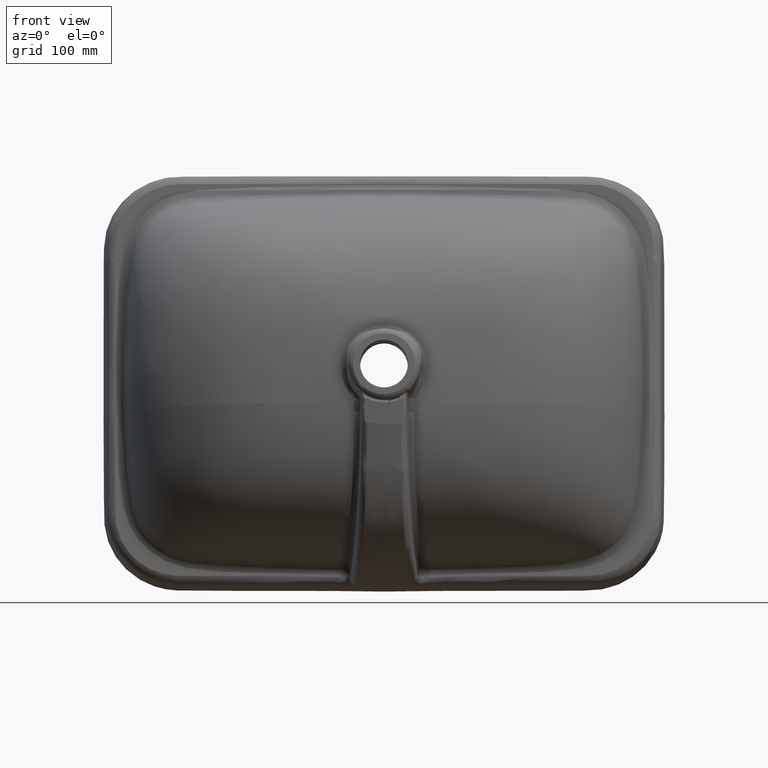
[diagram: clean part render]
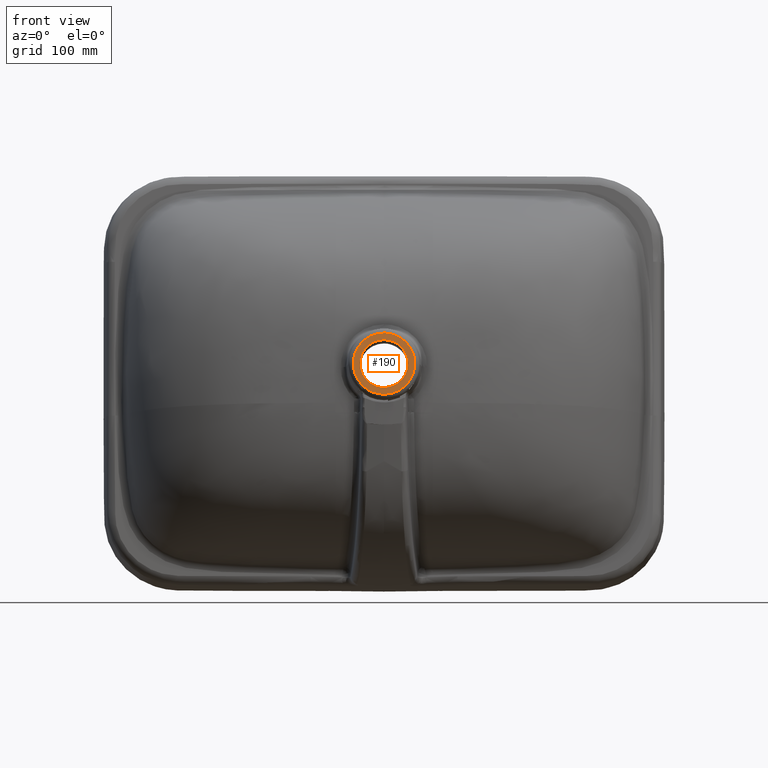
[diagram: same view with one face highlighted and labeled with its STEP entity id]
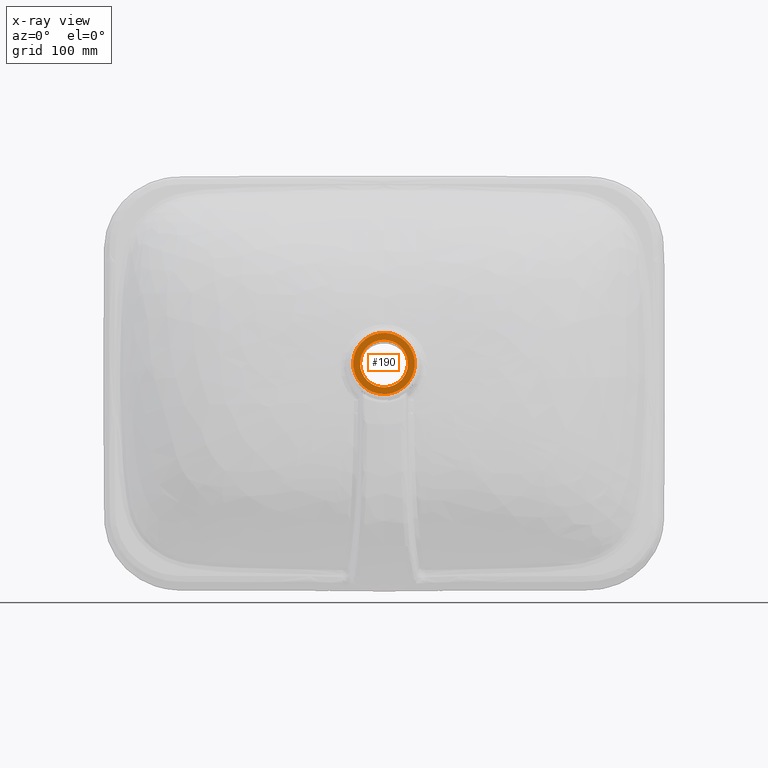
[diagram: x-ray of the same camera — body ghosted, the highlighted face saturated]
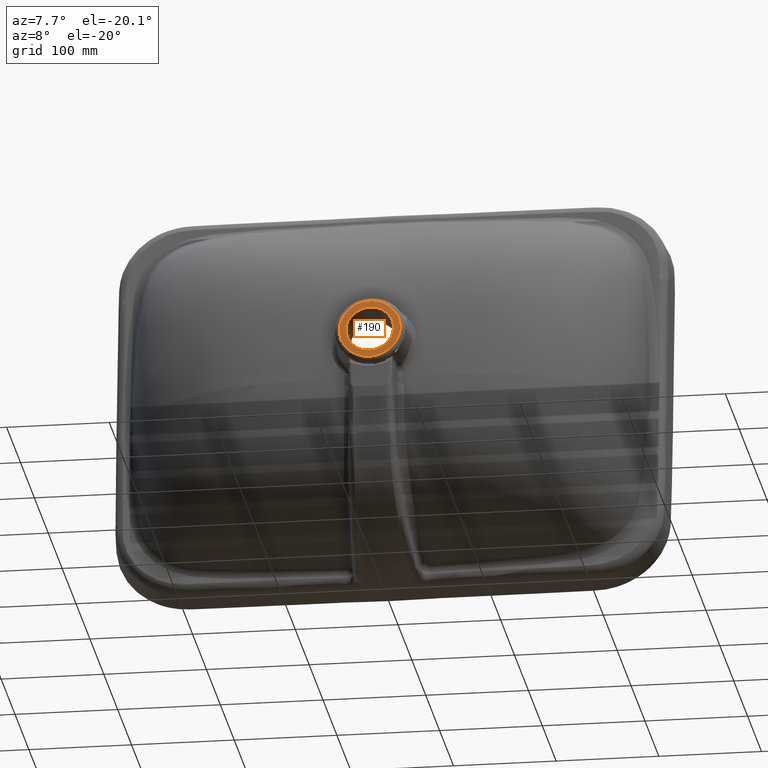
[diagram: same view with one face highlighted and labeled with its STEP entity id]
A machine part, front view. The second image highlights one B-rep face of the part: STEP entity #190.
The next image is the same camera in x-ray: the body ghosted, the highlighted face saturated — about 0% of this face is hidden behind the body in this view.
A second angle (auxiliary view) of the same face is appended — the face is thin or edge-on in the first view.
In plain terms, the highlighted planar face has unit normal (0, 0.9945, -0.1045).
Its self-contained STEP definition (entity closure, byte-faithful):
#161=FACE_BOUND('',#639,.T.);
#162=FACE_BOUND('',#640,.T.);
#178=PLANE('',#2673);
#190=ADVANCED_FACE('',(#161,#162),#178,.F.);
#639=EDGE_LOOP('',(#831));
#640=EDGE_LOOP('',(#832,#833,#834,#835,#836,#837,#838));
#831=ORIENTED_EDGE('',*,*,#1884,.T.);
#832=ORIENTED_EDGE('',*,*,#1885,.F.);
#833=ORIENTED_EDGE('',*,*,#1886,.F.);
#834=ORIENTED_EDGE('',*,*,#1887,.F.);
#835=ORIENTED_EDGE('',*,*,#1888,.F.);
#836=ORIENTED_EDGE('',*,*,#1889,.F.);
#837=ORIENTED_EDGE('',*,*,#1890,.F.);
#838=ORIENTED_EDGE('',*,*,#1891,.F.);
#1639=VERTEX_POINT('',#5483);
#1640=VERTEX_POINT('',#5488);
#1641=VERTEX_POINT('',#5489);
#1642=VERTEX_POINT('',#5494);
#1643=VERTEX_POINT('',#5519);
#1644=VERTEX_POINT('',#5524);
#1645=VERTEX_POINT('',#5529);
#1646=VERTEX_POINT('',#5534);
#1884=EDGE_CURVE('',#1639,#1639,#2291,.T.);
#1885=EDGE_CURVE('',#1640,#1641,#2292,.T.);
#1886=EDGE_CURVE('',#1642,#1640,#2293,.T.);
#1887=EDGE_CURVE('',#1643,#1642,#2294,.T.);
#1888=EDGE_CURVE('',#1644,#1643,#2295,.T.);
#1889=EDGE_CURVE('',#1645,#1644,#2296,.T.);
#1890=EDGE_CURVE('',#1646,#1645,#2297,.T.);
#1891=EDGE_CURVE('',#1641,#1646,#2298,.T.);
#2291=B_SPLINE_CURVE_WITH_KNOTS('',3,(#5465,#5466,#5467,#5468,#5469,#5470,
#5471,#5472,#5473,#5474,#5475,#5476,#5477,#5478,#5479,#5480,#5481,#5482),
 .UNSPECIFIED.,.T.,.F.,(1,3,2,2,2,2,2,2,2,3,1),(-0.125,0.,0.125,0.25,0.375,
0.5,0.625,0.75,0.875,1.,1.125),.UNSPECIFIED.);
#2292=B_SPLINE_CURVE_WITH_KNOTS('',3,(#5484,#5485,#5486,#5487),
 .UNSPECIFIED.,.F.,.F.,(4,4),(0.,1.),.UNSPECIFIED.);
#2293=B_SPLINE_CURVE_WITH_KNOTS('',3,(#5490,#5491,#5492,#5493),
 .UNSPECIFIED.,.F.,.F.,(4,4),(0.,1.),.UNSPECIFIED.);
#2294=B_SPLINE_CURVE_WITH_KNOTS('',3,(#5495,#5496,#5497,#5498,#5499,#5500,
#5501,#5502,#5503,#5504,#5505,#5506,#5507,#5508,#5509,#5510,#5511,#5512,
#5513,#5514,#5515,#5516,#5517,#5518),.UNSPECIFIED.,.F.,.F.,(4,2,2,2,2,2,
2,2,2,2,2,4),(0.,0.125,0.1875,0.250000000000001,0.375,0.5,0.625,0.75,0.8125,
0.875,0.9375,1.),.UNSPECIFIED.);
#2295=B_SPLINE_CURVE_WITH_KNOTS('',3,(#5520,#5521,#5522,#5523),
 .UNSPECIFIED.,.F.,.F.,(4,4),(0.,1.),.UNSPECIFIED.);
#2296=B_SPLINE_CURVE_WITH_KNOTS('',3,(#5525,#5526,#5527,#5528),
 .UNSPECIFIED.,.F.,.F.,(4,4),(0.,1.),.UNSPECIFIED.);
#2297=B_SPLINE_CURVE_WITH_KNOTS('',3,(#5530,#5531,#5532,#5533),
 .UNSPECIFIED.,.F.,.F.,(4,4),(0.,1.),.UNSPECIFIED.);
#2298=B_SPLINE_CURVE_WITH_KNOTS('',3,(#5535,#5536,#5537,#5538,#5539,#5540,
#5541),.UNSPECIFIED.,.F.,.F.,(4,1,1,1,4),(0.,0.234933804000324,0.499668864774638,
0.764403925548953,1.),.UNSPECIFIED.);
#2673=AXIS2_PLACEMENT_3D('',#5542,#2705,#2706);
#2705=DIRECTION('',(0.,0.,1.));
#2706=DIRECTION('',(1.,0.,0.));
#5465=CARTESIAN_POINT('',(23.1525002314284,-118.093147805348,-179.951073065238));
#5466=CARTESIAN_POINT('',(23.1522361668072,-112.057737267962,-179.951073065238));
#5467=CARTESIAN_POINT('',(20.6361224593884,-105.986877132274,-179.951073065238));
#5468=CARTESIAN_POINT('',(12.1064575063114,-97.4568389755793,-179.951073065238));
#5469=CARTESIAN_POINT('',(6.03151610850711,-94.940779752822,-179.951073065238));
#5470=CARTESIAN_POINT('',(-6.03151564565046,-94.9405158578746,-179.951073065238));
#5471=CARTESIAN_POINT('',(-12.1062704410616,-97.4570255766814,-179.951073065238));
#5472=CARTESIAN_POINT('',(-20.6363085989248,-105.986690531172,-179.951073065238));
#5473=CARTESIAN_POINT('',(-23.1523678211797,-112.061631927492,-179.951073065238));
#5474=CARTESIAN_POINT('',(-23.1526317159635,-124.124663683205,-179.951073065238));
#5475=CARTESIAN_POINT('',(-20.6361219957829,-130.199418479233,-179.951073065238));
#5476=CARTESIAN_POINT('',(-12.1064570442034,-138.729456634307,-179.951073065238));
#5477=CARTESIAN_POINT('',(-6.03151564429062,-141.245515857956,-179.951073065238));
#5478=CARTESIAN_POINT('',(6.03151610714743,-141.24577975274,-179.951073065238));
#5479=CARTESIAN_POINT('',(12.1062709038728,-138.729270033815,-179.951073065238));
#5480=CARTESIAN_POINT('',(20.6363090618271,-130.199605079724,-179.951073065238));
#5481=CARTESIAN_POINT('',(23.1527642960495,-124.128558342735,-179.951073065238));
#5482=CARTESIAN_POINT('',(23.1525002314284,-118.093147805348,-179.951073065238));
#5483=CARTESIAN_POINT('',(23.1525002314284,-118.093147805348,-179.951073065238));
#5484=CARTESIAN_POINT('',(20.4752068019757,-96.592550818882,-179.951073065238));
#5485=CARTESIAN_POINT('',(20.2290189071653,-96.3582098454732,-179.951073065238));
#5486=CARTESIAN_POINT('',(19.9787906828413,-96.128097444277,-179.951073065238));
#5487=CARTESIAN_POINT('',(19.7246869610484,-95.902331889427,-179.951073065238));
#5488=CARTESIAN_POINT('',(20.4752035873124,-96.5925542822118,-179.951073065238));
#5489=CARTESIAN_POINT('',(19.7246127640079,-95.9024152636992,-179.951073065238));
#5490=CARTESIAN_POINT('',(20.6678464159441,-96.7775833162008,-179.951073065238));
#5491=CARTESIAN_POINT('',(20.6039121637698,-96.7156167818768,-179.951073065238));
#5492=CARTESIAN_POINT('',(20.5396953235137,-96.6539404897797,-179.951073065238));
#5493=CARTESIAN_POINT('',(20.4752003726492,-96.5925577455416,-179.951073065238));
#5494=CARTESIAN_POINT('',(20.6678464159441,-96.7775833162008,-179.951073065238));
#5495=CARTESIAN_POINT('',(-20.7997519175901,-96.9062352397207,-179.951073065238));
#5496=CARTESIAN_POINT('',(-25.0171777170153,-101.045548156617,-179.951073065238));
#5497=CARTESIAN_POINT('',(-27.8985714586533,-106.372995191091,-179.951073065238));
#5498=CARTESIAN_POINT('',(-29.6687488879444,-114.975762824222,-179.951073065238));
#5499=CARTESIAN_POINT('',(-29.8341453161768,-117.987294103176,-179.951073065238));
#5500=CARTESIAN_POINT('',(-29.2788934980012,-123.806447255793,-179.951073065238));
#5501=CARTESIAN_POINT('',(-28.5717533338114,-126.682230129731,-179.951073065238));
#5502=CARTESIAN_POINT('',(-25.2216787236176,-134.821024069672,-179.951073065238));
#5503=CARTESIAN_POINT('',(-21.3870342241175,-139.508232994012,-179.951073065238));
#5504=CARTESIAN_POINT('',(-11.6025809160358,-146.046520273926,-179.951073065238));
#5505=CARTESIAN_POINT('',(-5.76196564681309,-147.798304895022,-179.951073065238));
#5506=CARTESIAN_POINT('',(5.91157298487299,-147.768469923288,-179.951073065238));
#5507=CARTESIAN_POINT('',(11.8008932315325,-145.952103968658,-179.951073065238));
#5508=CARTESIAN_POINT('',(21.4623017860706,-139.41874266036,-179.951073065238));
#5509=CARTESIAN_POINT('',(25.3298731687056,-134.656100432402,-179.951073065238));
#5510=CARTESIAN_POINT('',(28.6248815404239,-126.501785709905,-179.951073065238));
#5511=CARTESIAN_POINT('',(29.3108882435933,-123.656655447192,-179.951073065238));
#5512=CARTESIAN_POINT('',(29.8357901049207,-117.772688253814,-179.951073065238));
#5513=CARTESIAN_POINT('',(29.6502855397552,-114.815723406494,-179.951073065238));
#5514=CARTESIAN_POINT('',(28.4462480579128,-109.108608326535,-179.951073065238));
#5515=CARTESIAN_POINT('',(27.4055504328584,-106.305597715877,-179.951073065238));
#5516=CARTESIAN_POINT('',(24.5887866255475,-101.204566158506,-179.951073065238));
#5517=CARTESIAN_POINT('',(22.7898719135224,-98.83429879124,-179.951073065238));
#5518=CARTESIAN_POINT('',(20.6678464159441,-96.7775833162008,-179.951073065238));
#5519=CARTESIAN_POINT('',(-20.7919952728984,-96.8983144946419,-179.951073065238));
#5520=CARTESIAN_POINT('',(-20.6678459482559,-96.7775833115173,-179.951073065238));
#5521=CARTESIAN_POINT('',(-20.7066435082395,-96.8151867908659,-179.951073065238));
#5522=CARTESIAN_POINT('',(-20.7454410682231,-96.8527902702145,-179.951073065238));
#5523=CARTESIAN_POINT('',(-20.7842386282067,-96.8903937495631,-179.951073065238));
#5524=CARTESIAN_POINT('',(-20.6678459468872,-96.7775833101907,-179.951073065238));
#5525=CARTESIAN_POINT('',(-20.4752065885973,-96.5925510563551,-179.951073065238));
#5526=CARTESIAN_POINT('',(-20.5396979557757,-96.6539390060932,-179.951073065238));
#5527=CARTESIAN_POINT('',(-20.6039120633619,-96.7156171331982,-179.951073065238));
#5528=CARTESIAN_POINT('',(-20.6678459482559,-96.7775833115173,-179.951073065238));
#5529=CARTESIAN_POINT('',(-20.4752033739644,-96.5925545196968,-179.951073065238));
#5530=CARTESIAN_POINT('',(-19.746055921172,-95.9213365318446,-179.951073065238));
#5531=CARTESIAN_POINT('',(-19.9928221364326,-96.1410075817268,-179.951073065238));
#5532=CARTESIAN_POINT('',(-20.2359228087818,-96.3647819565337,-179.951073065238));
#5533=CARTESIAN_POINT('',(-20.4752065885919,-96.59255105635,-179.951073065238));
#5534=CARTESIAN_POINT('',(-19.7460559211721,-95.9213365318446,-179.951073065238));
#5535=CARTESIAN_POINT('',(19.7246869610484,-95.902331889427,-179.951073065238));
#5536=CARTESIAN_POINT('',(17.1967418082544,-93.6563083521717,-179.951073065238));
#5537=CARTESIAN_POINT('',(11.0043943862602,-89.7943608852505,-179.951073065238));
#5538=CARTESIAN_POINT('',(2.3485886982863E-007,-87.6693156889856,-179.951073065238));
#5539=CARTESIAN_POINT('',(-11.0139279928935,-89.7962019965921,-179.951073065238));
#5540=CARTESIAN_POINT('',(-17.2131544875001,-93.666550087131,-179.951073065238));
#5541=CARTESIAN_POINT('',(-19.746055921172,-95.9213365318446,-179.951073065238));
#5542=CARTESIAN_POINT('',(66.1553514713941,-170.957187479688,-179.951073065238));